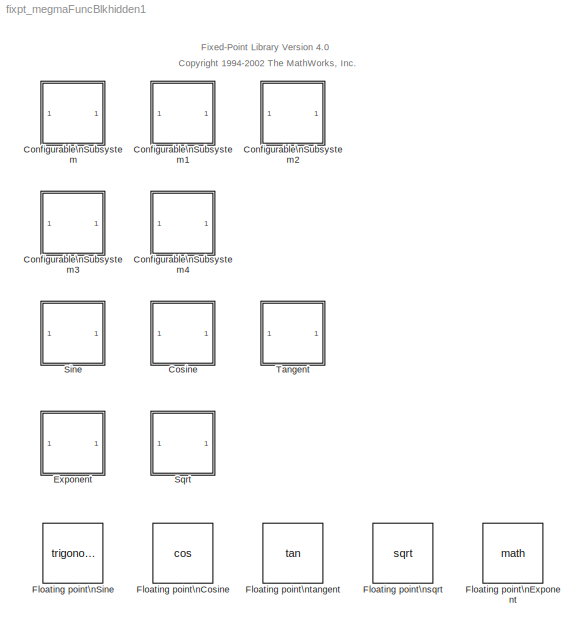
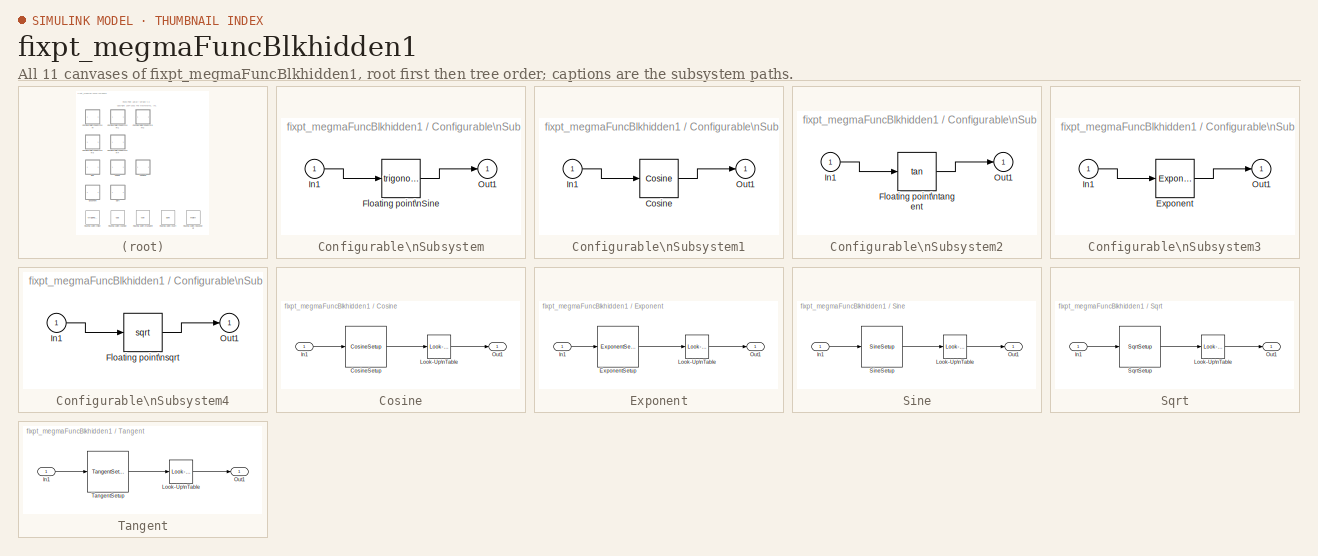
[diagram: thumbnail index - all 11 canvases of the model, root first then tree order]
MODEL fixpt_megmaFuncBlkhidden1
KIND library
BLOCK [SubSystem] Configurable\nSubsystem
  BlockChoice = Floating point Sine
  MemberBlocks = Floating point Sine,Sine
  Ports = [1, 1]
  TemplateBlock = self
  TreatAsAtomicUnit = off
BLOCK [Trigonometry] Configurable\nSubsystem/Floating point\nSine
  Ports = [1, 1]
BLOCK [Inport] Configurable\nSubsystem/In1
BLOCK [Outport] Configurable\nSubsystem/Out1
BLOCK [SubSystem] Configurable\nSubsystem1
  BlockChoice = Cosine
  MemberBlocks = Cosine,Floating point Cosine
  Ports = [1, 1]
  TemplateBlock = self
  TreatAsAtomicUnit = off
BLOCK [Reference] Configurable\nSubsystem1/Cosine  REF=fixpt_megmaFuncBlkhidden1/Cosine
  ErrMax = 0.01
  ErrMax_nonvisible = 0.01
  Nptsmax = []
  Nptsmax_nonvisible = []
  Ports = [1, 1]
  Recompute = Compute Always
  RndMeth = 'floor'
  RndMeth_nonvisible = 'floor'
  SourceBlock = fixpt_megmaFuncBlkhidden1/Cosine
  SourceType = MEGMA Fixed-Point Cosine
  Spacing = 'pow2'
  Spacing_nonvisible = 'pow2'
  xData = [1 2 3]
  xData_nonvisible = [0;0.03125;0.0625;0.09375;0.125;0.15625;0.1875;0.21875;0.25;0.28125;0.3125;0.34375;0.375;0.40625;0.4375;0.46875;0.5;0.53125;0.5625;0.59375;0.625;0.65625;0.6875;0.71875;0.75;0.78125;0.8125;0.84375;0.875;0.90625;0.9375;0.96875;1;1.03125;1.0625;1.09375;1.125;1.15625;1.1875;1.21875;1.25;1.28125;1.3125;1.34375;1.375;1.40625;1.4375;1.46875;1.5;1.53125;1.5625;1.59375;1.625;1.65625;1.6875;1.71875;1.75;1.7...<+1012ch>
  xDt = sfix(16)
  xDt_nonvisible = sfix(16)
  xMax_nonvisible = 2*pi
  xMin_nonvisible = 0
  xScale = 2^-5
  xScale_nonvisible = 2^-5
  xmax = 2*pi
  xmin = 0
  yData = [1 2 3]
  yData_nonvisible = [1;0.999511758485136;0.998047510700099;0.995608686458002;0.992197667229329;0.987817783816472;0.982473313101255;0.976169473868635;0.968912421710645;0.960709243015562;0.951567948048172;0.941497463127881;0.930507621912314;0.918609155794918;0.905813683425936;0.892133699366994;0.877582561890373;0.86217447993488;0.845924499231068;0.828848487609326;0.810963119505218;0.792285859677179;0.772834946152472;0....<+3319ch>
  yDt = sfix(16)
  yDt_nonvisible = sfix(16)
  yScale = 2^-5
  yScale_nonvisible = 2^-5
BLOCK [Inport] Configurable\nSubsystem1/In1
BLOCK [Outport] Configurable\nSubsystem1/Out1
BLOCK [SubSystem] Configurable\nSubsystem2
  BlockChoice = Floating point tangent
  MemberBlocks = Floating point tangent,Tangent
  Ports = [1, 1]
  TemplateBlock = self
  TreatAsAtomicUnit = off
BLOCK [Trigonometry] Configurable\nSubsystem2/Floating point\ntangent
  Operator = tan
  Ports = [1, 1]
BLOCK [Inport] Configurable\nSubsystem2/In1
BLOCK [Outport] Configurable\nSubsystem2/Out1
BLOCK [SubSystem] Configurable\nSubsystem3
  BlockChoice = Exponent
  MemberBlocks = Exponent,Floating point Exponent
  Ports = [1, 1]
  TemplateBlock = self
  TreatAsAtomicUnit = off
BLOCK [Reference] Configurable\nSubsystem3/Exponent  REF=fixpt_megmaFuncBlkhidden1/Exponent
  ErrMax = 0.01
  ErrMax_nonvisible = 0.01
  Nptsmax = []
  Nptsmax_nonvisible = []
  Ports = [1, 1]
  Recompute = Compute Always
  RndMeth = 'floor'
  RndMeth_nonvisible = 'floor'
  SourceBlock = fixpt_megmaFuncBlkhidden1/Exponent
  SourceType = MEGMA Fixed-Point Exponent
  Spacing = 'pow2'
  Spacing_nonvisible = 'pow2'
  xData = [1 2 3]
  xData_nonvisible = [0;0.03125;0.0625;0.09375;0.125;0.15625;0.1875;0.21875;0.25;0.28125;0.3125;0.34375;0.375;0.40625;0.4375;0.46875;0.5;0.53125;0.5625;0.59375;0.625;0.65625;0.6875;0.71875;0.75;0.78125;0.8125;0.84375;0.875;0.90625;0.9375;0.96875;1;1.03125;1.0625;1.09375;1.125;1.15625;1.1875;1.21875;1.25;1.28125;1.3125;1.34375;1.375;1.40625;1.4375;1.46875;1.5;1.53125;1.5625;1.59375;1.625;1.65625;1.6875;1.71875;1.75;1.7...<+1012ch>
  xDt = sfix(16)
  xDt_nonvisible = sfix(16)
  xMax_nonvisible = 2*pi
  xMin_nonvisible = 0
  xScale = 2^-5
  xScale_nonvisible = 2^-5
  xmax = 2*pi
  xmin = 0
  yData = [1 2 3]
  yData_nonvisible = [1;1.0317434074991;1.06449445891786;1.09828514030783;1.13314845306683;1.1691184461695;1.20623024942098;1.2445201077661;1.28402541668774;1.32478475872887;1.3668379411738;1.41022603492571;1.4549914146182;1.50117780000012;1.54883029863413;1.59799544995063;1.64872127070013;1.7010573018484;1.7550546569603;1.81076607211939;1.86824595743222;1.92755045016754;1.98873746958229;2.05186677348798;2.11700001661...<+2994ch>
  yDt = sfix(16)
  yDt_nonvisible = sfix(16)
  yScale = 2^-5
  yScale_nonvisible = 2^-5
BLOCK [Inport] Configurable\nSubsystem3/In1
BLOCK [Outport] Configurable\nSubsystem3/Out1
BLOCK [SubSystem] Configurable\nSubsystem4
  BlockChoice = Floating point sqrt
  MemberBlocks = Floating point sqrt,Sqrt
  Ports = [1, 1]
  TemplateBlock = self
  TreatAsAtomicUnit = off
BLOCK [Math] Configurable\nSubsystem4/Floating point\nsqrt
  Operator = sqrt
  Ports = [1, 1]
BLOCK [Inport] Configurable\nSubsystem4/In1
BLOCK [Outport] Configurable\nSubsystem4/Out1
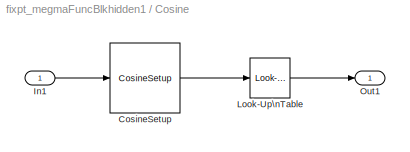
BLOCK [SubSystem] Cosine
  MaskCallbackString = ||||||||||||||||||||||||
  MaskDescription = MEGMA Cosine
  MaskDisplay = disp('y=cos(x)')
  MaskEnableString = on,on,on,on,on,on,on,on,on,on,on,on,on,on,on,on,on,on,on,on,on,on,on,on,on
  MaskHelp = web(fpbhelp('cosine'));
  MaskIconFrame = on
  MaskIconOpaque = on
  MaskIconRotate = none
  MaskIconUnits = normalized
  MaskInitialization = FuncStr = 'cos(x)';\nif Recompute ~= 3\n [xData,yData]= fixpt_look1_func_approx(FuncStr,xmin,xmax,xDt,xScale,yDt,yScale,RndMeth,ErrMax,Nptsmax,Spacing,Recompute);\nend
  MaskPromptString = ||Lookup table breakpoints|||||||||||||Allowed spacing 'pow2','even', or 'unrestricted'(default) |Maximum number of breakpoints|Maximum worst case approximation error|Rounding method 'floor'(default),'ceil','near' or 'zero'|Output Scaling|Input Scaling|Output Datatype|Input Datatype|Maximum input value of interest|Minimum input value of interest  <repeated x5 — deduplicated; at blocks: Cosine, Exponent, Sine, Sqrt, Tangent>
  MaskSelfModifiable = on
  MaskStyleString = edit,edit,popup(Compute Always|Cache for a specific MATLAB session|Cache across different MATLAB sessions),edit,edit,edit,edit,edit,edit,edit,edit,edit,edit,edit,edit,edit,edit,edit,edit,edit,edit,edit,edit,edit,edit  <repeated x5 — deduplicated; at blocks: Cosine, Exponent, Sine, Sqrt, Tangent>
  MaskToolTipString = on,on,on,on,on,on,on,on,on,on,on,on,on,on,on,on,on,on,on,on,on,on,on,on,on
  MaskTunableValueString = on,on,on,on,on,on,on,on,on,on,on,on,on,on,on,on,on,on,on,on,on,on,on,on,on
  MaskType = MEGMA Fixed-Point Cosine
  MaskValueString = [1 2 3]|[1 2 3]|Compute always|||||||||||||'pow2'|[]|0.01|'floor'|2^-5|2^-5|sfix(16)|sfix(16)|2*pi|0
  MaskVarAliasString = ,,,,,,,,,,,,,,,,,,,,,,,,
  MaskVariables = yData=@1;xData=@2;Recompute=@3;yData_nonvisible=@4;xData_nonvisible=@5;Spacing_nonvisible=@6;Nptsmax_nonvisible=@7;ErrMax_nonvisible=@8;RndMeth_nonvisible=@9;yScale_nonvisible=@10;yDt_nonvisible=@11;xScale_nonvisible=@12;xDt_nonvisible=@13;xMax_nonvisible=@14;xMin_nonvisible=@15;Spacing=@16;Nptsmax=@17;ErrMax=@18;RndMeth=@19;yScale=@20;xScale=@21;yDt=@22;xDt=@23;xmax=@24;xmin=@25;  <repeated x5 — deduplicated; at blocks: Cosine, Exponent, Sine, Sqrt, Tangent>
  MaskVisibilityString = off,off,on,off,off,off,off,off,off,off,off,off,off,off,off,on,on,on,on,on,on,on,on,on,on
  Ports = [1, 1]
  TreatAsAtomicUnit = off
BLOCK [Reference] Cosine/CosineSetup  REF=funcsetup/CosineSetup  (lib defined in mdl_fa99fdc21dc9)
  ErrMax = ErrMax
  ErrMax_nonvisible = ErrMax_nonvisible
  Nptsmax = Nptsmax
  Nptsmax_nonvisible = Nptsmax_nonvisible
  Ports = [1, 1]
  RndMeth = RndMeth
  RndMeth_nonvisible = RndMeth_nonvisible
  SourceBlock = funcsetup/CosineSetup
  SourceType = MEGMA CosineSetup
  Spacing = Spacing
  Spacing_nonvisible = Spacing_nonvisible
  xData = xData
  xData_nonvisible = xData_nonvisible
  xDt = xDt
  xDt_nonvisible = xDt_nonvisible
  xMax_nonvisible = xMax_nonvisible
  xMin_nonvisible = xMin_nonvisible
  xScale = xScale
  xScale_nonvisible = xScale_nonvisible
  xmax = xmax
  xmin = xmin
  yData = yData
  yData_nonvisible = yData_nonvisible
  yDt = yDt
  yDt_nonvisible = yDt_nonvisible
  yScale = yScale
  yScale_nonvisible = yScale_nonvisible
BLOCK [Inport] Cosine/In1
BLOCK [Reference] Cosine/Look-Up\nTable  REF=fixpt_lib_3p1/LookUp/Look-Up\nTable
  DblOver = off
  DoSatur = off
  LockScale = off
  LookUpMeth = Interpolation-Use End Values
  OutDataType = yDt
  OutScaling = yScale
  OutputDataTypeScalingMode = Specify via dialog
  Ports = [1, 1]
  RndMeth = Floor
  SourceBlock = fixpt_lib_3p1/LookUp/Look-Up\nTable
  SourceType = Fixed-Point Look-Up Table
  XLookUpData = xData
  YLookUpData = yData
  dolog = on
BLOCK [Outport] Cosine/Out1
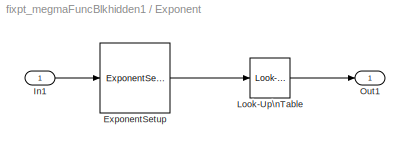
BLOCK [SubSystem] Exponent
  MaskCallbackString = ||||||||||||||||||||||||
  MaskDescription = MEGMA Exponent
  MaskDisplay = disp('y=exp(x)')
  MaskEnableString = on,on,on,on,on,on,on,on,on,on,on,on,on,on,on,on,on,on,on,on,on,on,on,on,on
  MaskHelp = web(fpbhelp('exponent'));
  MaskIconFrame = on
  MaskIconOpaque = on
  MaskIconRotate = none
  MaskIconUnits = normalized
  MaskInitialization = FuncStr = 'exp(x)';\nif Recompute ~= 3\n [xData,yData]= fixpt_look1_func_approx(FuncStr,xmin,xmax,xDt,xScale,yDt,yScale,RndMeth,ErrMax,Nptsmax,Spacing,Recompute);\nend
  MaskSelfModifiable = on
  MaskToolTipString = on,on,on,on,on,on,on,on,on,on,on,on,on,on,on,on,on,on,on,on,on,on,on,on,on
  MaskTunableValueString = on,on,on,on,on,on,on,on,on,on,on,on,on,on,on,on,on,on,on,on,on,on,on,on,on
  MaskType = MEGMA Fixed-Point Exponent
  MaskValueString = [1 2 3]|[1 2 3]|Compute always|||||||||||||'pow2'|[]|0.01|'floor'|2^-5|2^-5|sfix(16)|sfix(16)|2*pi|0
  MaskVarAliasString = ,,,,,,,,,,,,,,,,,,,,,,,,
  MaskVisibilityString = off,off,on,off,off,off,off,off,off,off,off,off,off,off,off,on,on,on,on,on,on,on,on,on,on
  Ports = [1, 1]
  TreatAsAtomicUnit = off
BLOCK [Reference] Exponent/ExponentSetup  REF=funcsetup/ExponentSetup  (lib defined in mdl_fa99fdc21dc9)
  ErrMax = ErrMax
  ErrMax_nonvisible = ErrMax_nonvisible
  Nptsmax = Nptsmax
  Nptsmax_nonvisible = Nptsmax_nonvisible
  Ports = [1, 1]
  RndMeth = RndMeth
  RndMeth_nonvisible = RndMeth_nonvisible
  SourceBlock = funcsetup/ExponentSetup
  SourceType = MEGMA ExponentSetup
  Spacing = Spacing
  Spacing_nonvisible = Spacing_nonvisible
  xData = xData
  xData_nonvisible = xData_nonvisible
  xDt = xDt
  xDt_nonvisible = xDt_nonvisible
  xMax_nonvisible = xMax_nonvisible
  xMin_nonvisible = xMin_nonvisible
  xScale = xScale
  xScale_nonvisible = xScale_nonvisible
  xmax = xmax
  xmin = xmin
  yData = yData
  yData_nonvisible = yData_nonvisible
  yDt = yDt
  yDt_nonvisible = yDt_nonvisible
  yScale = yScale
  yScale_nonvisible = yScale_nonvisible
BLOCK [Inport] Exponent/In1
BLOCK [Reference] Exponent/Look-Up\nTable  REF=fixpt_lib_3p1/LookUp/Look-Up\nTable
  DblOver = off
  DoSatur = off
  LockScale = off
  LookUpMeth = Interpolation-Use End Values
  OutDataType = yDt
  OutScaling = yScale
  OutputDataTypeScalingMode = Specify via dialog
  Ports = [1, 1]
  RndMeth = Floor
  SourceBlock = fixpt_lib_3p1/LookUp/Look-Up\nTable
  SourceType = Fixed-Point Look-Up Table
  XLookUpData = xData
  YLookUpData = yData
  dolog = on
BLOCK [Outport] Exponent/Out1
BLOCK [Trigonometry] Floating point\nCosine
  Operator = cos
  Ports = [1, 1]
BLOCK [Math] Floating point\nExponent
  Ports = [1, 1]
BLOCK [Trigonometry] Floating point\nSine
  Ports = [1, 1]
BLOCK [Math] Floating point\nsqrt
  Operator = sqrt
  Ports = [1, 1]
BLOCK [Trigonometry] Floating point\ntangent
  Operator = tan
  Ports = [1, 1]
BLOCK [SubSystem] Sine
  MaskCallbackString = ||||||||||||||||||||||||
  MaskDescription = MEGMA Sine
  MaskDisplay = disp('y=sin(x)')
  MaskEnableString = on,on,on,on,on,on,on,on,on,on,on,on,on,on,on,on,on,on,on,on,on,on,on,on,on
  MaskHelp = web(fpbhelp('sine'));
  MaskIconFrame = on
  MaskIconOpaque = on
  MaskIconRotate = none
  MaskIconUnits = normalized
  MaskInitialization = FuncStr = 'sin(x)';\nif Recompute ~= 3\n [xData,yData]= fixpt_look1_func_approx(FuncStr,xmin,xmax,xDt,xScale,yDt,yScale,RndMeth,ErrMax,Nptsmax,Spacing,Recompute);\nend
  MaskSelfModifiable = on
  MaskToolTipString = on,on,on,on,on,on,on,on,on,on,on,on,on,on,on,on,on,on,on,on,on,on,on,on,on
  MaskTunableValueString = on,on,on,on,on,on,on,on,on,on,on,on,on,on,on,on,on,on,on,on,on,on,on,on,on
  MaskType = MEGMA Fixed-Point Sine
  MaskValueString = [1 2 3]|[1 2 3]|Compute always|||||||||||||'pow2'|[]|0.01|'floor'|2^-5|2^-5|sfix(16)|sfix(16)|2*pi|0
  MaskVarAliasString = ,,,,,,,,,,,,,,,,,,,,,,,,
  MaskVisibilityString = off,off,on,off,off,off,off,off,off,off,off,off,off,off,off,on,on,on,on,on,on,on,on,on,on
  Ports = [1, 1]
  TreatAsAtomicUnit = off
BLOCK [Inport] Sine/In1
BLOCK [Reference] Sine/Look-Up\nTable  REF=fixpt_lib_3p1/LookUp/Look-Up\nTable
  DblOver = off
  DoSatur = off
  LockScale = off
  LookUpMeth = Interpolation-Use End Values
  OutDataType = yDt
  OutScaling = yScale
  OutputDataTypeScalingMode = Specify via dialog
  Ports = [1, 1]
  RndMeth = Floor
  SourceBlock = fixpt_lib_3p1/LookUp/Look-Up\nTable
  SourceType = Fixed-Point Look-Up Table
  XLookUpData = xData
  YLookUpData = yData
  dolog = on
BLOCK [Outport] Sine/Out1
BLOCK [Reference] Sine/SineSetup  REF=funcsetup/SineSetup  (lib defined in mdl_fa99fdc21dc9)
  ErrMax = ErrMax
  ErrMax_nonvisible = ErrMax_nonvisible
  Nptsmax = Nptsmax
  Nptsmax_nonvisible = Nptsmax_nonvisible
  Ports = [1, 1]
  RndMeth = RndMeth
  RndMeth_nonvisible = RndMeth_nonvisible
  SourceBlock = funcsetup/SineSetup
  SourceType = MEGMA SineSetup
  Spacing = Spacing
  Spacing_nonvisible = Spacing_nonvisible
  xData = xData
  xData_nonvisible = xData_nonvisible
  xDt = xDt
  xDt_nonvisible = xDt_nonvisible
  xMax_nonvisible = xMax_nonvisible
  xMin_nonvisible = xMin_nonvisible
  xScale = xScale
  xScale_nonvisible = xScale_nonvisible
  xmax = xmax
  xmin = xmin
  yData = yData
  yData_nonvisible = yData_nonvisible
  yDt = yDt
  yDt_nonvisible = yDt_nonvisible
  yScale = yScale
  yScale_nonvisible = yScale_nonvisible
BLOCK [SubSystem] Sqrt
  MaskCallbackString = ||||||||||||||||||||||||
  MaskDescription = MEGMA Sqrt
  MaskDisplay = disp('y=sqrt(x)')
  MaskEnableString = on,on,on,on,on,on,on,on,on,on,on,on,on,on,on,on,on,on,on,on,on,on,on,on,on
  MaskHelp = web(fpbhelp('sqrt'));
  MaskIconFrame = on
  MaskIconOpaque = on
  MaskIconRotate = none
  MaskIconUnits = normalized
  MaskInitialization = FuncStr = 'sqrt(x)';\nif Recompute ~= 3\n [xData,yData]= fixpt_look1_func_approx(FuncStr,xmin,xmax,xDt,xScale,yDt,yScale,RndMeth,ErrMax,Nptsmax,Spacing,Recompute);\nend
  MaskSelfModifiable = on
  MaskToolTipString = on,on,on,on,on,on,on,on,on,on,on,on,on,on,on,on,on,on,on,on,on,on,on,on,on
  MaskTunableValueString = on,on,on,on,on,on,on,on,on,on,on,on,on,on,on,on,on,on,on,on,on,on,on,on,on
  MaskType = MEGMA Fixed-Point Sqrt
  MaskValueString = [1 2 3]|[1 2 3]|Compute always|||||||||||||'pow2'|[]|0.01|'floor'|2^-5|2^-5|sfix(16)|sfix(16)|2*pi|0
  MaskVarAliasString = ,,,,,,,,,,,,,,,,,,,,,,,,
  MaskVisibilityString = off,off,on,off,off,off,off,off,off,off,off,off,off,off,off,on,on,on,on,on,on,on,on,on,on
  Ports = [1, 1]
  TreatAsAtomicUnit = off
BLOCK [Inport] Sqrt/In1
BLOCK [Reference] Sqrt/Look-Up\nTable  REF=fixpt_lib_3p1/LookUp/Look-Up\nTable
  DblOver = off
  DoSatur = off
  LockScale = off
  LookUpMeth = Interpolation-Use End Values
  OutDataType = yDt
  OutScaling = yScale
  OutputDataTypeScalingMode = Specify via dialog
  Ports = [1, 1]
  RndMeth = Floor
  SourceBlock = fixpt_lib_3p1/LookUp/Look-Up\nTable
  SourceType = Fixed-Point Look-Up Table
  XLookUpData = xData
  YLookUpData = yData
  dolog = on
BLOCK [Outport] Sqrt/Out1
BLOCK [Reference] Sqrt/SqrtSetup  REF=funcsetup/SqrtSetup  (lib defined in mdl_fa99fdc21dc9)
  ErrMax = ErrMax
  ErrMax_nonvisible = ErrMax_nonvisible
  Nptsmax = Nptsmax
  Nptsmax_nonvisible = Nptsmax_nonvisible
  Ports = [1, 1]
  RndMeth = RndMeth
  RndMeth_nonvisible = RndMeth_nonvisible
  SourceBlock = funcsetup/SqrtSetup
  SourceType = MEGMA SqrtSetup
  Spacing = Spacing
  Spacing_nonvisible = Spacing_nonvisible
  xData = xData
  xData_nonvisible = xData_nonvisible
  xDt = xDt
  xDt_nonvisible = xDt_nonvisible
  xMax_nonvisible = xMax_nonvisible
  xMin_nonvisible = xMin_nonvisible
  xScale = xScale
  xScale_nonvisible = xScale_nonvisible
  xmax = xmax
  xmin = xmin
  yData = yData
  yData_nonvisible = yData_nonvisible
  yDt = yDt
  yDt_nonvisible = yDt_nonvisible
  yScale = yScale
  yScale_nonvisible = yScale_nonvisible
BLOCK [SubSystem] Tangent
  MaskCallbackString = ||||||||||||||||||||||||
  MaskDescription = MEGMA Tangent
  MaskDisplay = disp('y=tan(x)')
  MaskEnableString = on,on,on,on,on,on,on,on,on,on,on,on,on,on,on,on,on,on,on,on,on,on,on,on,on
  MaskHelp = web(fpbhelp('tangent'));
  MaskIconFrame = on
  MaskIconOpaque = on
  MaskIconRotate = none
  MaskIconUnits = normalized
  MaskInitialization = FuncStr = 'tan(x)';\nif Recompute ~= 3\n [xData,yData]= fixpt_look1_func_approx(FuncStr,xmin,xmax,xDt,xScale,yDt,yScale,RndMeth,ErrMax,Nptsmax,Spacing,Recompute);\nend
  MaskSelfModifiable = on
  MaskToolTipString = on,on,on,on,on,on,on,on,on,on,on,on,on,on,on,on,on,on,on,on,on,on,on,on,on
  MaskTunableValueString = on,on,on,on,on,on,on,on,on,on,on,on,on,on,on,on,on,on,on,on,on,on,on,on,on
  MaskType = MEGMA Fixed-Point Tangent
  MaskValueString = [1 2 3]|[1 2 3]|Compute always|||||||||||||'pow2'|[]|0.01|'floor'|2^-5|2^-5|sfix(16)|sfix(16)|2*pi|0
  MaskVarAliasString = ,,,,,,,,,,,,,,,,,,,,,,,,
  MaskVisibilityString = off,off,on,off,off,off,off,off,off,off,off,off,off,off,off,on,on,on,on,on,on,on,on,on,on
  Ports = [1, 1]
  TreatAsAtomicUnit = off
BLOCK [Inport] Tangent/In1
BLOCK [Reference] Tangent/Look-Up\nTable  REF=fixpt_lib_3p1/LookUp/Look-Up\nTable
  DblOver = off
  DoSatur = off
  LockScale = off
  LookUpMeth = Interpolation-Use End Values
  OutDataType = yDt
  OutScaling = yScale
  OutputDataTypeScalingMode = Specify via dialog
  Ports = [1, 1]
  RndMeth = Floor
  SourceBlock = fixpt_lib_3p1/LookUp/Look-Up\nTable
  SourceType = Fixed-Point Look-Up Table
  XLookUpData = xData
  YLookUpData = yData
  dolog = on
BLOCK [Outport] Tangent/Out1
BLOCK [Reference] Tangent/TangentSetup  REF=funcsetup/TangentSetup  (lib defined in mdl_fa99fdc21dc9)
  ErrMax = ErrMax
  ErrMax_nonvisible = ErrMax_nonvisible
  Nptsmax = Nptsmax
  Nptsmax_nonvisible = Nptsmax_nonvisible
  Ports = [1, 1]
  RndMeth = RndMeth
  RndMeth_nonvisible = RndMeth_nonvisible
  SourceBlock = funcsetup/TangentSetup
  SourceType = MEGMA TangentSetup
  Spacing = Spacing
  Spacing_nonvisible = Spacing_nonvisible
  xData = xData
  xData_nonvisible = xData_nonvisible
  xDt = xDt
  xDt_nonvisible = xDt_nonvisible
  xMax_nonvisible = xMax_nonvisible
  xMin_nonvisible = xMin_nonvisible
  xScale = xScale
  xScale_nonvisible = xScale_nonvisible
  xmax = xmax
  xmin = xmin
  yData = yData
  yData_nonvisible = yData_nonvisible
  yDt = yDt
  yDt_nonvisible = yDt_nonvisible
  yScale = yScale
  yScale_nonvisible = yScale_nonvisible
ANNOTATION (root): <copyright redacted>
ANNOTATION (root): Fixed-Point Library Version 4.0
LINE Configurable\nSubsystem/Floating point\nSine:1 -> Configurable\nSubsystem/Out1:1
LINE Configurable\nSubsystem/In1:1 -> Configurable\nSubsystem/Floating point\nSine:1
LINE Configurable\nSubsystem1/Cosine:1 -> Configurable\nSubsystem1/Out1:1
LINE Configurable\nSubsystem1/In1:1 -> Configurable\nSubsystem1/Cosine:1
LINE Configurable\nSubsystem2/Floating point\ntangent:1 -> Configurable\nSubsystem2/Out1:1
LINE Configurable\nSubsystem2/In1:1 -> Configurable\nSubsystem2/Floating point\ntangent:1
LINE Configurable\nSubsystem3/Exponent:1 -> Configurable\nSubsystem3/Out1:1
LINE Configurable\nSubsystem3/In1:1 -> Configurable\nSubsystem3/Exponent:1
LINE Configurable\nSubsystem4/Floating point\nsqrt:1 -> Configurable\nSubsystem4/Out1:1
LINE Configurable\nSubsystem4/In1:1 -> Configurable\nSubsystem4/Floating point\nsqrt:1
LINE Cosine/CosineSetup:1 -> Cosine/Look-Up\nTable:1
LINE Cosine/In1:1 -> Cosine/CosineSetup:1
LINE Cosine/Look-Up\nTable:1 -> Cosine/Out1:1
LINE Exponent/ExponentSetup:1 -> Exponent/Look-Up\nTable:1
LINE Exponent/In1:1 -> Exponent/ExponentSetup:1
LINE Exponent/Look-Up\nTable:1 -> Exponent/Out1:1
LINE Sine/In1:1 -> Sine/SineSetup:1
LINE Sine/Look-Up\nTable:1 -> Sine/Out1:1
LINE Sine/SineSetup:1 -> Sine/Look-Up\nTable:1
LINE Sqrt/In1:1 -> Sqrt/SqrtSetup:1
LINE Sqrt/Look-Up\nTable:1 -> Sqrt/Out1:1
LINE Sqrt/SqrtSetup:1 -> Sqrt/Look-Up\nTable:1
LINE Tangent/In1:1 -> Tangent/TangentSetup:1
LINE Tangent/Look-Up\nTable:1 -> Tangent/Out1:1
LINE Tangent/TangentSetup:1 -> Tangent/Look-Up\nTable:1
